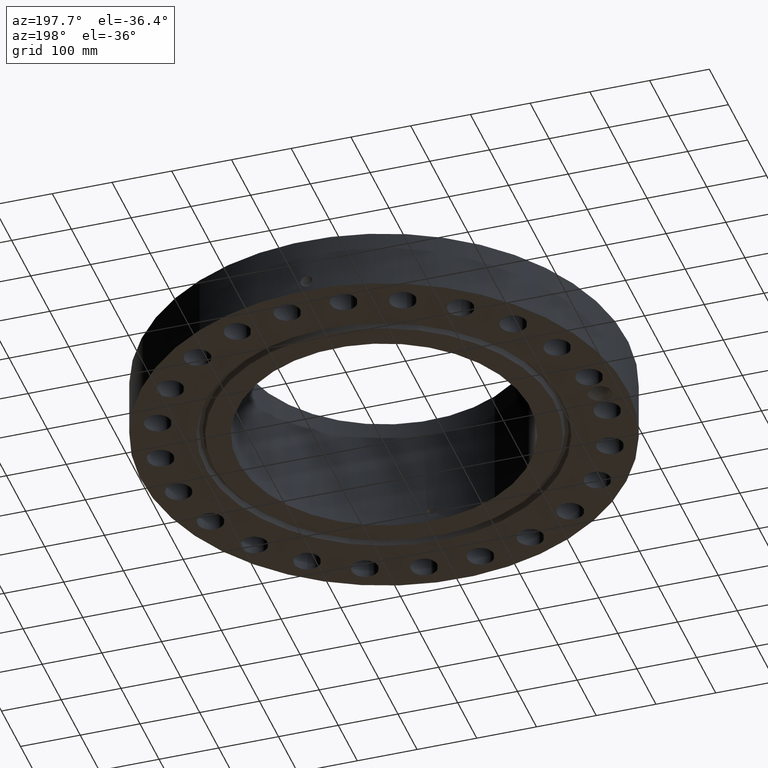
[diagram: clean part render]
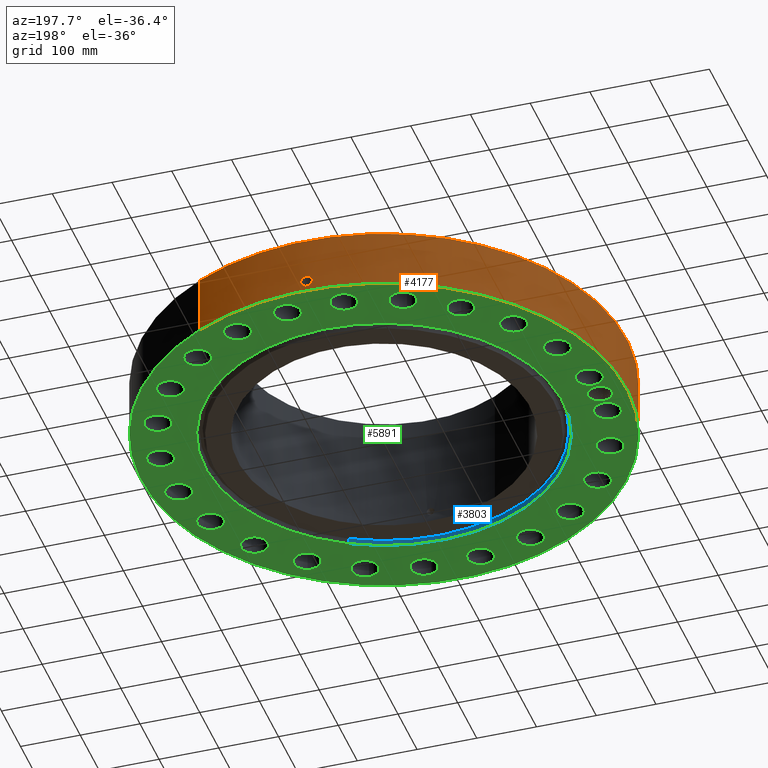
[diagram: same view with three faces highlighted in distinct colors, each labeled with its STEP entity id]
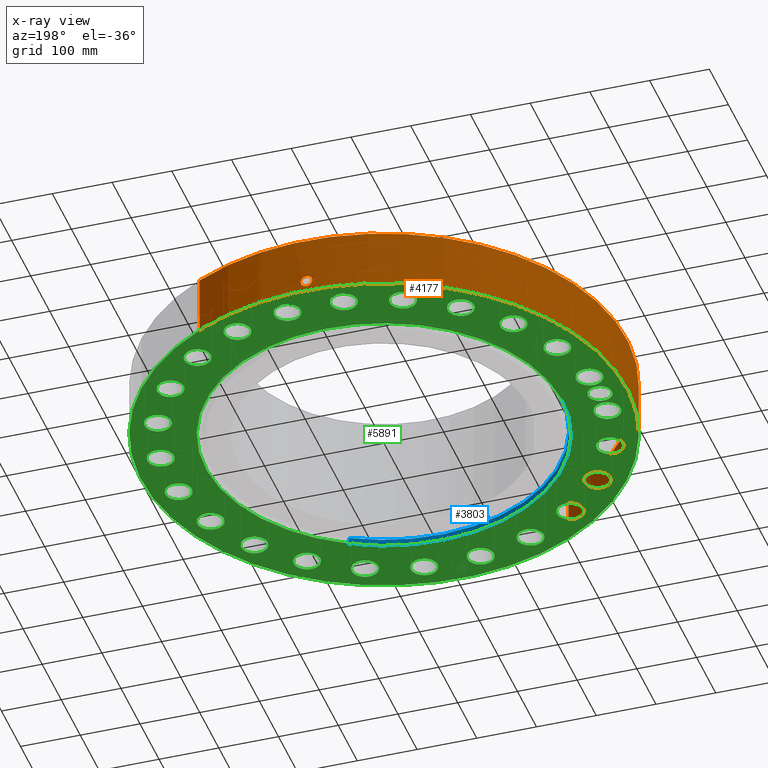
[diagram: x-ray of the same camera — body ghosted, the three highlighted faces saturated]
A machine part, auxiliary view with three faces highlighted in distinct colors.
The next image is the same camera in x-ray (body ghosted, the three faces saturated) — at least one of them is partly hidden behind the body in this view.
Their STEP definitions:

[orange] entity #4177 — the highlighted cylindrical surface (partial cylindrical patch) has radius 406.4 mm, axis along (0, 0, -1).
#2927=AXIS2_PLACEMENT_3D('Circle Axis2P3D',#2925,#2926,$) ;
#4063=AXIS2_PLACEMENT_3D('Cylinder Axis2P3D',#4060,#4061,#4062) ;
#4067=AXIS2_PLACEMENT_3D('Circle Axis2P3D',#4065,#4066,$) ;
#2920=CARTESIAN_POINT('Vertex',(7.6708086177,14.0413209903,3.87500000002)) ;
#2922=CARTESIAN_POINT('Vertex',(-7.6708086177,-14.0413209903,3.87500000002)) ;
#2925=CARTESIAN_POINT('Axis2P3D Location',(0.,0.,3.87500000002)) ;
#4060=CARTESIAN_POINT('Axis2P3D Location',(0.,0.,3.93750000002)) ;
#4065=CARTESIAN_POINT('Axis2P3D Location',(0.,0.,1.67844740731E-015)) ;
#4069=CARTESIAN_POINT('Vertex',(-7.6708086177,-14.0413209903,2.23792987641E-015)) ;
#4071=CARTESIAN_POINT('Vertex',(7.6708086177,14.0413209903,2.23792987641E-015)) ;
#4074=CARTESIAN_POINT('Line Origine',(-7.6708086177,-14.0413209903,1.93750000001)) ;
#4079=CARTESIAN_POINT('Line Origine',(7.6708086177,14.0413209903,1.93750000001)) ;
#4091=CARTESIAN_POINT('Control Point',(-0.000716008392116,15.999999984,1.10411846139)) ;
#4092=CARTESIAN_POINT('Control Point',(-0.0189154325791,15.9999991696,1.1040817082)) ;
#4093=CARTESIAN_POINT('Control Point',(-0.0371116867363,15.9999670598,1.10263811945)) ;
#4094=CARTESIAN_POINT('Control Point',(-0.0550890318255,15.9999051622,1.09980498088)) ;
#4095=CARTESIAN_POINT('Vertex',(-0.000715672256008,15.9999999841,1.10411851063)) ;
#4097=CARTESIAN_POINT('Vertex',(-0.0550803065232,15.999905444,1.09980637388)) ;
#4101=CARTESIAN_POINT('Control Point',(-0.0550802118813,15.9999051926,1.09980582858)) ;
#4102=CARTESIAN_POINT('Control Point',(-0.0955969838486,15.9997657123,1.09541327921)) ;
#4103=CARTESIAN_POINT('Control Point',(-0.135483074503,15.9994685863,1.08365436159)) ;
#4104=CARTESIAN_POINT('Control Point',(-0.172232896312,15.9990729679,1.0653007981)) ;
#4105=CARTESIAN_POINT('Vertex',(-0.172232896312,15.9990729679,1.0653007981)) ;
#4109=CARTESIAN_POINT('Control Point',(-0.0310649567399,15.9999698428,0.341193018259)) ;
#4110=CARTESIAN_POINT('Control Point',(-0.0962765262843,15.9998432304,0.349443757772)) ;
#4111=CARTESIAN_POINT('Control Point',(-0.159435222472,15.9993883715,0.371295261138)) ;
#4112=CARTESIAN_POINT('Control Point',(-0.21660465553,15.9986524433,0.406092532817)) ;
#4113=CARTESIAN_POINT('Control Point',(-0.292161661732,15.9973970214,0.477062028021)) ;
#4114=CARTESIAN_POINT('Control Point',(-0.340748175392,15.9963833302,0.565879201962)) ;
#4115=CARTESIAN_POINT('Control Point',(-0.354565893199,15.9960757286,0.60010180167)) ;
#4116=CARTESIAN_POINT('Control Point',(-0.37513194166,15.9956053363,0.675080916852)) ;
#4117=CARTESIAN_POINT('Control Point',(-0.376942949447,15.9955577989,0.752370184705)) ;
#4118=CARTESIAN_POINT('Control Point',(-0.372580085534,15.9956631169,0.792943341149)) ;
#4119=CARTESIAN_POINT('Control Point',(-0.350060892462,15.9961923171,0.88565834929)) ;
#4120=CARTESIAN_POINT('Control Point',(-0.300399921771,15.9972222194,0.967192321482)) ;
#4121=CARTESIAN_POINT('Control Point',(-0.263624814407,15.9979099405,1.00825222803)) ;
#4122=CARTESIAN_POINT('Control Point',(-0.220118864164,15.9985574668,1.04138562452)) ;
#4123=CARTESIAN_POINT('Control Point',(-0.172232896312,15.9990729679,1.0653007981)) ;
#4124=CARTESIAN_POINT('Vertex',(-0.0310649567399,15.9999698428,0.341193018259)) ;
#4128=CARTESIAN_POINT('Control Point',(-0.0310649567399,15.9999698428,0.341193018259)) ;
#4129=CARTESIAN_POINT('Control Point',(-0.020705174629,15.999989957,0.34087511048)) ;
#4130=CARTESIAN_POINT('Control Point',(-0.0103376437744,16.0000000018,0.340935838154)) ;
#4131=CARTESIAN_POINT('Control Point',(2.72878357803E-006,16.0000000001,0.341374667805)) ;
#4132=CARTESIAN_POINT('Vertex',(2.72878353824E-006,16.0000000001,0.341374667805)) ;
#4136=CARTESIAN_POINT('Control Point',(0.19258388645,15.9988409408,0.397488708576)) ;
#4137=CARTESIAN_POINT('Control Point',(0.148989688924,15.9993657001,0.372084856025)) ;
#4138=CARTESIAN_POINT('Control Point',(0.101113495156,15.9997843131,0.353795317004)) ;
#4139=CARTESIAN_POINT('Control Point',(0.05080449046,15.9999999914,0.343530615092)) ;
#4140=CARTESIAN_POINT('Control Point',(2.72878349275E-006,16.0000000001,0.341374667805)) ;
#4141=CARTESIAN_POINT('Vertex',(0.19258388645,15.9988409408,0.397488708576)) ;
#4145=CARTESIAN_POINT('Control Point',(0.19258388645,15.9988409408,0.397488708576)) ;
#4146=CARTESIAN_POINT('Control Point',(0.249383493126,15.9981572232,0.430587807935)) ;
#4147=CARTESIAN_POINT('Control Point',(0.299389171265,15.9973031853,0.475008490786)) ;
#4148=CARTESIAN_POINT('Control Point',(0.3394524256,15.9964366393,0.529171991541)) ;
#4149=CARTESIAN_POINT('Control Point',(0.383556872993,15.9954112295,0.627406953463)) ;
#4150=CARTESIAN_POINT('Control Point',(0.392034107967,15.9951951609,0.732688684405)) ;
#4151=CARTESIAN_POINT('Control Point',(0.389882999819,15.9952493329,0.772870036436)) ;
#4152=CARTESIAN_POINT('Control Point',(0.375666585746,15.9956011091,0.847792699241)) ;
#4153=CARTESIAN_POINT('Control Point',(0.343489946975,15.9963246888,0.916234875014)) ;
#4154=CARTESIAN_POINT('Control Point',(0.324394424324,15.9967324358,0.946657275789)) ;
#4155=CARTESIAN_POINT('Control Point',(0.262721035511,15.9979362201,1.02288492959)) ;
#4156=CARTESIAN_POINT('Control Point',(0.179727431408,15.9991319704,1.07573360299)) ;
#4157=CARTESIAN_POINT('Control Point',(0.121118275682,15.99971795,1.0977016688)) ;
#4158=CARTESIAN_POINT('Control Point',(0.0600802735763,16.0000000972,1.10709991283)) ;
#4159=CARTESIAN_POINT('Control Point',(-2.58579355047E-005,16.,1.1041529843)) ;
#4160=CARTESIAN_POINT('Vertex',(-2.58579355483E-005,16.,1.1041529843)) ;
#4164=CARTESIAN_POINT('Control Point',(-0.000715672246441,15.9999999841,1.10411851061)) ;
#4165=CARTESIAN_POINT('Control Point',(-0.000370789664234,15.9999999995,1.10413607272)) ;
#4166=CARTESIAN_POINT('Control Point',(-2.585794055E-005,16.,1.1041529843)) ;
#2926=DIRECTION('Axis2P3D Direction',(0.,0.,-0.0393700787402)) ;
#4061=DIRECTION('Axis2P3D Direction',(0.,0.,-0.0393700787402)) ;
#4062=DIRECTION('Axis2P3D XDirection',(0.0188750212049,0.0345504945626,0.)) ;
#4066=DIRECTION('Axis2P3D Direction',(0.,0.,-0.0393700787402)) ;
#4075=DIRECTION('Vector Direction',(0.,0.,-0.0393700787402)) ;
#4080=DIRECTION('Vector Direction',(0.,0.,-0.0393700787402)) ;
#4076=VECTOR('Line Direction',#4075,0.0393700787402) ;
#4081=VECTOR('Line Direction',#4080,0.0393700787402) ;
#4085=ORIENTED_EDGE('',*,*,#4073,.F.) ;
#4086=ORIENTED_EDGE('',*,*,#4078,.T.) ;
#4087=ORIENTED_EDGE('',*,*,#2929,.T.) ;
#4088=ORIENTED_EDGE('',*,*,#4083,.F.) ;
#4169=ORIENTED_EDGE('',*,*,#4099,.T.) ;
#4170=ORIENTED_EDGE('',*,*,#4107,.T.) ;
#4171=ORIENTED_EDGE('',*,*,#4126,.F.) ;
#4172=ORIENTED_EDGE('',*,*,#4134,.T.) ;
#4173=ORIENTED_EDGE('',*,*,#4143,.F.) ;
#4174=ORIENTED_EDGE('',*,*,#4162,.T.) ;
#4175=ORIENTED_EDGE('',*,*,#4167,.F.) ;
#4176=FACE_BOUND('',#4168,.T.) ;
#4177=ADVANCED_FACE('PartBody',(#4089,#4176),#4064,.T.) ;
#4090=B_SPLINE_CURVE_WITH_KNOTS('',3,(#4091,#4092,#4093,#4094),.UNSPECIFIED.,.F.,.U.,(4,4),(34.6166522849,36.6357055127),.UNSPECIFIED.) ;
#4100=B_SPLINE_CURVE_WITH_KNOTS('',3,(#4101,#4102,#4103,#4104),.UNSPECIFIED.,.F.,.U.,(4,4),(0.,4.57930785995),.UNSPECIFIED.) ;
#4108=B_SPLINE_CURVE_WITH_KNOTS('',5,(#4109,#4110,#4111,#4112,#4113,#4114,#4115,#4116,#4117,#4118,#4119,#4120,#4121,#4122,#4123),.UNSPECIFIED.,.F.,.U.,(6,3,3,3,6),(0.,11.4233522668,17.9912598645,25.3436101799,35.2885381895),.UNSPECIFIED.) ;
#4127=B_SPLINE_CURVE_WITH_KNOTS('',3,(#4128,#4129,#4130,#4131),.UNSPECIFIED.,.F.,.U.,(4,4),(0.,1.08068987329),.UNSPECIFIED.) ;
#4135=B_SPLINE_CURVE_WITH_KNOTS('',4,(#4136,#4137,#4138,#4139,#4140),.UNSPECIFIED.,.F.,.U.,(5,5),(0.,7.07917101212),.UNSPECIFIED.) ;
#4144=B_SPLINE_CURVE_WITH_KNOTS('',5,(#4145,#4146,#4147,#4148,#4149,#4150,#4151,#4152,#4153,#4154,#4155,#4156,#4157,#4158,#4159),.UNSPECIFIED.,.F.,.U.,(6,3,3,3,6),(0.,11.5294620754,18.6151346563,25.0414217412,36.276505331),.UNSPECIFIED.) ;
#4163=B_SPLINE_CURVE_WITH_KNOTS('',2,(#4164,#4165,#4166),.UNSPECIFIED.,.F.,.U.,(3,3),(1.02033615425,1.04612611494),.UNSPECIFIED.) ;
#2928=CIRCLE('generated circle',#2927,16.0000000001) ;
#4068=CIRCLE('generated circle',#4067,16.0000000001) ;
#4064=CYLINDRICAL_SURFACE('generated cylinder',#4063,16.0000000001) ;
#2929=EDGE_CURVE('',#2923,#2921,#2928,.T.) ;
#4073=EDGE_CURVE('',#4070,#4072,#4068,.T.) ;
#4078=EDGE_CURVE('',#4070,#2923,#4077,.F.) ;
#4083=EDGE_CURVE('',#4072,#2921,#4082,.F.) ;
#4099=EDGE_CURVE('',#4096,#4098,#4090,.T.) ;
#4107=EDGE_CURVE('',#4098,#4106,#4100,.T.) ;
#4126=EDGE_CURVE('',#4125,#4106,#4108,.T.) ;
#4134=EDGE_CURVE('',#4125,#4133,#4127,.T.) ;
#4143=EDGE_CURVE('',#4142,#4133,#4135,.T.) ;
#4162=EDGE_CURVE('',#4142,#4161,#4144,.T.) ;
#4167=EDGE_CURVE('',#4096,#4161,#4163,.T.) ;
#4084=EDGE_LOOP('',(#4085,#4086,#4087,#4088)) ;
#4168=EDGE_LOOP('',(#4169,#4170,#4171,#4172,#4173,#4174,#4175)) ;
#4089=FACE_OUTER_BOUND('',#4084,.T.) ;
#4077=LINE('Line',#4074,#4076) ;
#4082=LINE('Line',#4079,#4081) ;
#2921=VERTEX_POINT('',#2920) ;
#2923=VERTEX_POINT('',#2922) ;
#4070=VERTEX_POINT('',#4069) ;
#4072=VERTEX_POINT('',#4071) ;
#4096=VERTEX_POINT('',#4095) ;
#4098=VERTEX_POINT('',#4097) ;
#4106=VERTEX_POINT('',#4105) ;
#4125=VERTEX_POINT('',#4124) ;
#4133=VERTEX_POINT('',#4132) ;
#4142=VERTEX_POINT('',#4141) ;
#4161=VERTEX_POINT('',#4160) ;

[blue] entity #3803 — the highlighted conical surface has half-angle 23 deg.
#2635=AXIS2_PLACEMENT_3D('Circle Axis2P3D',#2633,#2634,$) ;
#3764=AXIS2_PLACEMENT_3D('Cone Axis2P3D',#3761,#3762,#3763) ;
#3794=AXIS2_PLACEMENT_3D('Circle Axis2P3D',#3792,#3793,$) ;
#2611=CARTESIAN_POINT('Vertex',(5.57180647081,-10.1991233326,0.338443867711)) ;
#2613=CARTESIAN_POINT('Vertex',(-5.57180647081,10.1991233326,0.338443867711)) ;
#2633=CARTESIAN_POINT('Axis2P3D Location',(0.,0.,0.338443867711)) ;
#3761=CARTESIAN_POINT('Axis2P3D Location',(0.,0.,0.338443867711)) ;
#3770=CARTESIAN_POINT('Vertex',(-5.64068117447,10.325197632,0.)) ;
#3772=CARTESIAN_POINT('Vertex',(5.64068117447,-10.325197632,-1.95818864186E-015)) ;
#3775=CARTESIAN_POINT('Line Origine',(5.60624382264,-10.2621604823,0.169221933855)) ;
#3780=CARTESIAN_POINT('Line Origine',(-5.60624382264,10.2621604823,0.169221933855)) ;
#3792=CARTESIAN_POINT('Axis2P3D Location',(0.,0.,0.)) ;
#2634=DIRECTION('Axis2P3D Direction',(0.,0.,0.0393700787402)) ;
#3762=DIRECTION('Axis2P3D Direction',(-0.,-0.,-0.0393700787402)) ;
#3763=DIRECTION('Axis2P3D XDirection',(0.0188750212049,-0.0345504945626,0.)) ;
#3776=DIRECTION('Vector Direction',(0.00737505833565,-0.0134999537303,-0.0362403485611)) ;
#3781=DIRECTION('Vector Direction',(-0.00737505833565,0.0134999537303,-0.0362403485611)) ;
#3793=DIRECTION('Axis2P3D Direction',(0.,0.,-0.0393700787402)) ;
#3777=VECTOR('Line Direction',#3776,0.0393700787402) ;
#3782=VECTOR('Line Direction',#3781,0.0393700787402) ;
#3798=ORIENTED_EDGE('',*,*,#3796,.T.) ;
#3799=ORIENTED_EDGE('',*,*,#3784,.T.) ;
#3800=ORIENTED_EDGE('',*,*,#2637,.T.) ;
#3801=ORIENTED_EDGE('',*,*,#3779,.F.) ;
#3803=ADVANCED_FACE('PartBody',(#3802),#3765,.F.) ;
#2636=CIRCLE('generated circle',#2635,11.6218391015) ;
#3795=CIRCLE('generated circle',#3794,11.7655) ;
#3765=CONICAL_SURFACE('Cone',#3764,11.6218391015,0.401425727959) ;
#2637=EDGE_CURVE('',#2614,#2612,#2636,.T.) ;
#3779=EDGE_CURVE('',#3773,#2612,#3778,.F.) ;
#3784=EDGE_CURVE('',#3771,#2614,#3783,.F.) ;
#3796=EDGE_CURVE('',#3773,#3771,#3795,.T.) ;
#3797=EDGE_LOOP('',(#3798,#3799,#3800,#3801)) ;
#3802=FACE_OUTER_BOUND('',#3797,.T.) ;
#3778=LINE('Line',#3775,#3777) ;
#3783=LINE('Line',#3780,#3782) ;
#2612=VERTEX_POINT('',#2611) ;
#2614=VERTEX_POINT('',#2613) ;
#3771=VERTEX_POINT('',#3770) ;
#3773=VERTEX_POINT('',#3772) ;

[green] entity #5891 — the highlighted planar face has unit normal (0, 0, -1).
#598=AXIS2_PLACEMENT_3D('Plane Axis2P3D',#595,#596,#597) ;
#3768=AXIS2_PLACEMENT_3D('Circle Axis2P3D',#3766,#3767,$) ;
#3794=AXIS2_PLACEMENT_3D('Circle Axis2P3D',#3792,#3793,$) ;
#4067=AXIS2_PLACEMENT_3D('Circle Axis2P3D',#4065,#4066,$) ;
#4180=AXIS2_PLACEMENT_3D('Circle Axis2P3D',#4178,#4179,$) ;
#4416=AXIS2_PLACEMENT_3D('Circle Axis2P3D',#4414,#4415,$) ;
#4435=AXIS2_PLACEMENT_3D('Circle Axis2P3D',#4433,#4434,$) ;
#4459=AXIS2_PLACEMENT_3D('Circle Axis2P3D',#4457,#4458,$) ;
#4478=AXIS2_PLACEMENT_3D('Circle Axis2P3D',#4476,#4477,$) ;
#4502=AXIS2_PLACEMENT_3D('Circle Axis2P3D',#4500,#4501,$) ;
#4521=AXIS2_PLACEMENT_3D('Circle Axis2P3D',#4519,#4520,$) ;
#4545=AXIS2_PLACEMENT_3D('Circle Axis2P3D',#4543,#4544,$) ;
#4564=AXIS2_PLACEMENT_3D('Circle Axis2P3D',#4562,#4563,$) ;
#4588=AXIS2_PLACEMENT_3D('Circle Axis2P3D',#4586,#4587,$) ;
#4607=AXIS2_PLACEMENT_3D('Circle Axis2P3D',#4605,#4606,$) ;
#4631=AXIS2_PLACEMENT_3D('Circle Axis2P3D',#4629,#4630,$) ;
#4650=AXIS2_PLACEMENT_3D('Circle Axis2P3D',#4648,#4649,$) ;
#4674=AXIS2_PLACEMENT_3D('Circle Axis2P3D',#4672,#4673,$) ;
#4693=AXIS2_PLACEMENT_3D('Circle Axis2P3D',#4691,#4692,$) ;
#4717=AXIS2_PLACEMENT_3D('Circle Axis2P3D',#4715,#4716,$) ;
#4736=AXIS2_PLACEMENT_3D('Circle Axis2P3D',#4734,#4735,$) ;
#4760=AXIS2_PLACEMENT_3D('Circle Axis2P3D',#4758,#4759,$) ;
#4779=AXIS2_PLACEMENT_3D('Circle Axis2P3D',#4777,#4778,$) ;
#4803=AXIS2_PLACEMENT_3D('Circle Axis2P3D',#4801,#4802,$) ;
#4822=AXIS2_PLACEMENT_3D('Circle Axis2P3D',#4820,#4821,$) ;
#4846=AXIS2_PLACEMENT_3D('Circle Axis2P3D',#4844,#4845,$) ;
#4865=AXIS2_PLACEMENT_3D('Circle Axis2P3D',#4863,#4864,$) ;
#4889=AXIS2_PLACEMENT_3D('Circle Axis2P3D',#4887,#4888,$) ;
#4908=AXIS2_PLACEMENT_3D('Circle Axis2P3D',#4906,#4907,$) ;
#4932=AXIS2_PLACEMENT_3D('Circle Axis2P3D',#4930,#4931,$) ;
#4951=AXIS2_PLACEMENT_3D('Circle Axis2P3D',#4949,#4950,$) ;
#4975=AXIS2_PLACEMENT_3D('Circle Axis2P3D',#4973,#4974,$) ;
#4994=AXIS2_PLACEMENT_3D('Circle Axis2P3D',#4992,#4993,$) ;
#5018=AXIS2_PLACEMENT_3D('Circle Axis2P3D',#5016,#5017,$) ;
#5037=AXIS2_PLACEMENT_3D('Circle Axis2P3D',#5035,#5036,$) ;
#5061=AXIS2_PLACEMENT_3D('Circle Axis2P3D',#5059,#5060,$) ;
#5080=AXIS2_PLACEMENT_3D('Circle Axis2P3D',#5078,#5079,$) ;
#5104=AXIS2_PLACEMENT_3D('Circle Axis2P3D',#5102,#5103,$) ;
#5123=AXIS2_PLACEMENT_3D('Circle Axis2P3D',#5121,#5122,$) ;
#5147=AXIS2_PLACEMENT_3D('Circle Axis2P3D',#5145,#5146,$) ;
#5166=AXIS2_PLACEMENT_3D('Circle Axis2P3D',#5164,#5165,$) ;
#5190=AXIS2_PLACEMENT_3D('Circle Axis2P3D',#5188,#5189,$) ;
#5209=AXIS2_PLACEMENT_3D('Circle Axis2P3D',#5207,#5208,$) ;
#5233=AXIS2_PLACEMENT_3D('Circle Axis2P3D',#5231,#5232,$) ;
#5252=AXIS2_PLACEMENT_3D('Circle Axis2P3D',#5250,#5251,$) ;
#5276=AXIS2_PLACEMENT_3D('Circle Axis2P3D',#5274,#5275,$) ;
#5295=AXIS2_PLACEMENT_3D('Circle Axis2P3D',#5293,#5294,$) ;
#5319=AXIS2_PLACEMENT_3D('Circle Axis2P3D',#5317,#5318,$) ;
#5338=AXIS2_PLACEMENT_3D('Circle Axis2P3D',#5336,#5337,$) ;
#5362=AXIS2_PLACEMENT_3D('Circle Axis2P3D',#5360,#5361,$) ;
#5381=AXIS2_PLACEMENT_3D('Circle Axis2P3D',#5379,#5380,$) ;
#5405=AXIS2_PLACEMENT_3D('Circle Axis2P3D',#5403,#5404,$) ;
#5424=AXIS2_PLACEMENT_3D('Circle Axis2P3D',#5422,#5423,$) ;
#5735=AXIS2_PLACEMENT_3D('Circle Axis2P3D',#5733,#5734,$) ;
#5744=AXIS2_PLACEMENT_3D('Circle Axis2P3D',#5742,#5743,$) ;
#595=CARTESIAN_POINT('Axis2P3D Location',(0.,9.62500000004,0.)) ;
#3766=CARTESIAN_POINT('Axis2P3D Location',(0.,0.,0.)) ;
#3770=CARTESIAN_POINT('Vertex',(-5.64068117447,10.325197632,0.)) ;
#3772=CARTESIAN_POINT('Vertex',(5.64068117447,-10.325197632,-1.95818864186E-015)) ;
#3792=CARTESIAN_POINT('Axis2P3D Location',(0.,0.,0.)) ;
#4065=CARTESIAN_POINT('Axis2P3D Location',(0.,0.,1.67844740731E-015)) ;
#4069=CARTESIAN_POINT('Vertex',(-7.6708086177,-14.0413209903,2.23792987641E-015)) ;
#4071=CARTESIAN_POINT('Vertex',(7.6708086177,14.0413209903,2.23792987641E-015)) ;
#4178=CARTESIAN_POINT('Axis2P3D Location',(0.,0.,1.67844740731E-015)) ;
#4411=CARTESIAN_POINT('Vertex',(14.8959740163,-2.27949558542,0.)) ;
#4414=CARTESIAN_POINT('Axis2P3D Location',(14.1280892746,-1.85999823914,0.)) ;
#4418=CARTESIAN_POINT('Vertex',(13.360204533,-1.44050089286,0.)) ;
#4433=CARTESIAN_POINT('Axis2P3D Location',(14.1280892746,-1.85999823914,0.)) ;
#4454=CARTESIAN_POINT('Vertex',(12.5321375373,-4.84929239481,0.)) ;
#4457=CARTESIAN_POINT('Axis2P3D Location',(13.1652833383,-5.45323891122,0.)) ;
#4461=CARTESIAN_POINT('Vertex',(13.7984291393,-6.05718542764,0.)) ;
#4476=CARTESIAN_POINT('Axis2P3D Location',(13.1652833383,-5.45323891122,0.)) ;
#4497=CARTESIAN_POINT('Vertex',(10.8500260789,-7.92761263388,0.)) ;
#4500=CARTESIAN_POINT('Axis2P3D Location',(11.3052850992,-8.67485036341,0.)) ;
#4504=CARTESIAN_POINT('Vertex',(11.7605441195,-9.42208809294,0.)) ;
#4519=CARTESIAN_POINT('Axis2P3D Location',(11.3052850992,-8.67485036341,0.)) ;
#4540=CARTESIAN_POINT('Vertex',(8.42850327366,-10.465679173,0.)) ;
#4543=CARTESIAN_POINT('Axis2P3D Location',(8.67485036341,-11.3052850992,0.)) ;
#4547=CARTESIAN_POINT('Vertex',(8.92119745316,-12.1448910254,0.)) ;
#4562=CARTESIAN_POINT('Axis2P3D Location',(8.67485036341,-11.3052850992,0.)) ;
#4583=CARTESIAN_POINT('Vertex',(5.43259189909,-12.2905269717,0.)) ;
#4586=CARTESIAN_POINT('Axis2P3D Location',(5.45323891122,-13.1652833383,0.)) ;
#4590=CARTESIAN_POINT('Vertex',(5.47388592335,-14.0400397049,0.)) ;
#4605=CARTESIAN_POINT('Axis2P3D Location',(5.45323891122,-13.1652833383,0.)) ;
#4626=CARTESIAN_POINT('Vertex',(2.06645836439,-13.2777956685,0.)) ;
#4629=CARTESIAN_POINT('Axis2P3D Location',(1.85999823914,-14.1280892746,0.)) ;
#4633=CARTESIAN_POINT('Vertex',(1.6535381139,-14.9783828808,0.)) ;
#4648=CARTESIAN_POINT('Axis2P3D Location',(1.85999823914,-14.1280892746,0.)) ;
#4669=CARTESIAN_POINT('Vertex',(-1.44050089286,-13.360204533,0.)) ;
#4672=CARTESIAN_POINT('Axis2P3D Location',(-1.85999823914,-14.1280892746,0.)) ;
#4676=CARTESIAN_POINT('Vertex',(-2.27949558542,-14.8959740163,0.)) ;
#4691=CARTESIAN_POINT('Axis2P3D Location',(-1.85999823914,-14.1280892746,0.)) ;
#4712=CARTESIAN_POINT('Vertex',(-4.84929239481,-12.5321375373,0.)) ;
#4715=CARTESIAN_POINT('Axis2P3D Location',(-5.45323891122,-13.1652833383,-2.23792987641E-015)) ;
#4719=CARTESIAN_POINT('Vertex',(-6.05718542764,-13.7984291393,-2.23792987641E-015)) ;
#4734=CARTESIAN_POINT('Axis2P3D Location',(-5.45323891122,-13.1652833383,-2.23792987641E-015)) ;
#4755=CARTESIAN_POINT('Vertex',(-7.92761263388,-10.8500260789,0.)) ;
#4758=CARTESIAN_POINT('Axis2P3D Location',(-8.67485036341,-11.3052850992,-3.35689481461E-015)) ;
#4762=CARTESIAN_POINT('Vertex',(-9.42208809294,-11.7605441195,-3.35689481461E-015)) ;
#4777=CARTESIAN_POINT('Axis2P3D Location',(-8.67485036341,-11.3052850992,-3.35689481461E-015)) ;
#4798=CARTESIAN_POINT('Vertex',(-10.465679173,-8.42850327366,0.)) ;
#4801=CARTESIAN_POINT('Axis2P3D Location',(-11.3052850992,-8.67485036341,0.)) ;
#4805=CARTESIAN_POINT('Vertex',(-12.1448910254,-8.92119745316,0.)) ;
#4820=CARTESIAN_POINT('Axis2P3D Location',(-11.3052850992,-8.67485036341,0.)) ;
#4841=CARTESIAN_POINT('Vertex',(-12.2905269717,-5.43259189909,0.)) ;
#4844=CARTESIAN_POINT('Axis2P3D Location',(-13.1652833383,-5.45323891122,0.)) ;
#4848=CARTESIAN_POINT('Vertex',(-14.0400397049,-5.47388592335,0.)) ;
#4863=CARTESIAN_POINT('Axis2P3D Location',(-13.1652833383,-5.45323891122,0.)) ;
#4884=CARTESIAN_POINT('Vertex',(-13.2777956685,-2.06645836439,0.)) ;
#4887=CARTESIAN_POINT('Axis2P3D Location',(-14.1280892746,-1.85999823914,0.)) ;
#4891=CARTESIAN_POINT('Vertex',(-14.9783828808,-1.6535381139,0.)) ;
#4906=CARTESIAN_POINT('Axis2P3D Location',(-14.1280892746,-1.85999823914,0.)) ;
#4927=CARTESIAN_POINT('Vertex',(-13.360204533,1.44050089286,0.)) ;
#4930=CARTESIAN_POINT('Axis2P3D Location',(-14.1280892746,1.85999823914,0.)) ;
#4934=CARTESIAN_POINT('Vertex',(-14.8959740163,2.27949558542,0.)) ;
#4949=CARTESIAN_POINT('Axis2P3D Location',(-14.1280892746,1.85999823914,0.)) ;
#4970=CARTESIAN_POINT('Vertex',(-12.5321375373,4.84929239481,0.)) ;
#4973=CARTESIAN_POINT('Axis2P3D Location',(-13.1652833383,5.45323891122,0.)) ;
#4977=CARTESIAN_POINT('Vertex',(-13.7984291393,6.05718542764,0.)) ;
#4992=CARTESIAN_POINT('Axis2P3D Location',(-13.1652833383,5.45323891122,0.)) ;
#5013=CARTESIAN_POINT('Vertex',(-10.8500260789,7.92761263388,0.)) ;
#5016=CARTESIAN_POINT('Axis2P3D Location',(-11.3052850992,8.67485036341,0.)) ;
#5020=CARTESIAN_POINT('Vertex',(-11.7605441195,9.42208809294,0.)) ;
#5035=CARTESIAN_POINT('Axis2P3D Location',(-11.3052850992,8.67485036341,0.)) ;
#5056=CARTESIAN_POINT('Vertex',(-8.42850327366,10.465679173,0.)) ;
#5059=CARTESIAN_POINT('Axis2P3D Location',(-8.67485036341,11.3052850992,0.)) ;
#5063=CARTESIAN_POINT('Vertex',(-8.92119745316,12.1448910254,0.)) ;
#5078=CARTESIAN_POINT('Axis2P3D Location',(-8.67485036341,11.3052850992,0.)) ;
#5099=CARTESIAN_POINT('Vertex',(-5.43259189909,12.2905269717,0.)) ;
#5102=CARTESIAN_POINT('Axis2P3D Location',(-5.45323891122,13.1652833383,0.)) ;
#5106=CARTESIAN_POINT('Vertex',(-5.47388592335,14.0400397049,0.)) ;
#5121=CARTESIAN_POINT('Axis2P3D Location',(-5.45323891122,13.1652833383,0.)) ;
#5142=CARTESIAN_POINT('Vertex',(-2.06645836439,13.2777956685,0.)) ;
#5145=CARTESIAN_POINT('Axis2P3D Location',(-1.85999823914,14.1280892746,0.)) ;
#5149=CARTESIAN_POINT('Vertex',(-1.6535381139,14.9783828808,0.)) ;
#5164=CARTESIAN_POINT('Axis2P3D Location',(-1.85999823914,14.1280892746,0.)) ;
#5185=CARTESIAN_POINT('Vertex',(1.44050089286,13.360204533,0.)) ;
#5188=CARTESIAN_POINT('Axis2P3D Location',(1.85999823914,14.1280892746,0.)) ;
#5192=CARTESIAN_POINT('Vertex',(2.27949558542,14.8959740163,0.)) ;
#5207=CARTESIAN_POINT('Axis2P3D Location',(1.85999823914,14.1280892746,0.)) ;
#5228=CARTESIAN_POINT('Vertex',(4.84929239481,12.5321375373,0.)) ;
#5231=CARTESIAN_POINT('Axis2P3D Location',(5.45323891122,13.1652833383,0.)) ;
#5235=CARTESIAN_POINT('Vertex',(6.05718542764,13.7984291393,0.)) ;
#5250=CARTESIAN_POINT('Axis2P3D Location',(5.45323891122,13.1652833383,0.)) ;
#5271=CARTESIAN_POINT('Vertex',(7.92761263388,10.8500260789,0.)) ;
#5274=CARTESIAN_POINT('Axis2P3D Location',(8.67485036341,11.3052850992,0.)) ;
#5278=CARTESIAN_POINT('Vertex',(9.42208809294,11.7605441195,0.)) ;
#5293=CARTESIAN_POINT('Axis2P3D Location',(8.67485036341,11.3052850992,0.)) ;
#5314=CARTESIAN_POINT('Vertex',(10.465679173,8.42850327366,0.)) ;
#5317=CARTESIAN_POINT('Axis2P3D Location',(11.3052850992,8.67485036341,0.)) ;
#5321=CARTESIAN_POINT('Vertex',(12.1448910254,8.92119745316,0.)) ;
#5336=CARTESIAN_POINT('Axis2P3D Location',(11.3052850992,8.67485036341,0.)) ;
#5357=CARTESIAN_POINT('Vertex',(12.2905269717,5.43259189909,0.)) ;
#5360=CARTESIAN_POINT('Axis2P3D Location',(13.1652833383,5.45323891122,0.)) ;
#5364=CARTESIAN_POINT('Vertex',(14.0400397049,5.47388592335,0.)) ;
#5379=CARTESIAN_POINT('Axis2P3D Location',(13.1652833383,5.45323891122,0.)) ;
#5400=CARTESIAN_POINT('Vertex',(13.2777956685,2.06645836439,0.)) ;
#5403=CARTESIAN_POINT('Axis2P3D Location',(14.1280892746,1.85999823914,0.)) ;
#5407=CARTESIAN_POINT('Vertex',(14.9783828808,1.6535381139,0.)) ;
#5422=CARTESIAN_POINT('Axis2P3D Location',(14.1280892746,1.85999823914,0.)) ;
#5733=CARTESIAN_POINT('Axis2P3D Location',(-14.2500000001,-5.59482469102E-015,0.)) ;
#5737=CARTESIAN_POINT('Vertex',(-14.920692473,0.36640096788,0.)) ;
#5739=CARTESIAN_POINT('Vertex',(-14.1094306095,0.75121122791,0.)) ;
#5742=CARTESIAN_POINT('Axis2P3D Location',(-14.2500000001,-5.59482469102E-015,0.)) ;
#5746=CARTESIAN_POINT('Vertex',(-14.1097536316,-0.751271601117,0.)) ;
#5750=CARTESIAN_POINT('Control Point',(-13.4375000001,-7.83275456743E-015,0.)) ;
#5751=CARTESIAN_POINT('Control Point',(-13.4405034542,-0.0700819285857,0.)) ;
#5752=CARTESIAN_POINT('Control Point',(-13.4510704131,-0.139688741525,0.)) ;
#5753=CARTESIAN_POINT('Control Point',(-13.469126324,-0.207699956182,0.)) ;
#5754=CARTESIAN_POINT('Control Point',(-13.5196047882,-0.338419013301,0.)) ;
#5755=CARTESIAN_POINT('Control Point',(-13.5966628751,-0.45457305884,0.)) ;
#5756=CARTESIAN_POINT('Control Point',(-13.6413276843,-0.508069708967,0.)) ;
#5757=CARTESIAN_POINT('Control Point',(-13.7414180917,-0.604187066671,0.)) ;
#5758=CARTESIAN_POINT('Control Point',(-13.859436652,-0.675897153558,0.)) ;
#5759=CARTESIAN_POINT('Control Point',(-13.9220591025,-0.70500553106,0.)) ;
#5760=CARTESIAN_POINT('Control Point',(-13.9980973818,-0.730534705861,0.)) ;
#5761=CARTESIAN_POINT('Control Point',(-14.0761243261,-0.745926395749,0.)) ;
#5762=CARTESIAN_POINT('Control Point',(-14.0873054263,-0.747917097956,0.)) ;
#5763=CARTESIAN_POINT('Control Point',(-14.098516914,-0.749699054026,0.)) ;
#5764=CARTESIAN_POINT('Control Point',(-14.1097536316,-0.751271601117,0.)) ;
#5765=CARTESIAN_POINT('Vertex',(-13.4375000001,-6.71378962923E-015,0.)) ;
#5769=CARTESIAN_POINT('Control Point',(-13.4375000001,-6.71378962923E-015,0.)) ;
#5770=CARTESIAN_POINT('Control Point',(-13.4405027017,0.0700643704389,0.)) ;
#5771=CARTESIAN_POINT('Control Point',(-13.451065102,0.139653916554,0.)) ;
#5772=CARTESIAN_POINT('Control Point',(-13.4691221647,0.207669665983,0.)) ;
#5773=CARTESIAN_POINT('Control Point',(-13.5195963373,0.338375346104,0.)) ;
#5774=CARTESIAN_POINT('Control Point',(-13.5966936542,0.454596623609,0.)) ;
#5775=CARTESIAN_POINT('Control Point',(-13.6413728868,0.508119610523,0.)) ;
#5776=CARTESIAN_POINT('Control Point',(-13.7248060198,0.588234336413,0.)) ;
#5777=CARTESIAN_POINT('Control Point',(-13.8207317134,0.651398172347,0.)) ;
#5778=CARTESIAN_POINT('Control Point',(-13.860824708,0.673749756225,0.)) ;
#5779=CARTESIAN_POINT('Control Point',(-13.9334162356,0.707459416637,0.)) ;
#5780=CARTESIAN_POINT('Control Point',(-14.009437181,0.731460646307,0.)) ;
#5781=CARTESIAN_POINT('Control Point',(-14.0424616597,0.73990565866,0.)) ;
#5782=CARTESIAN_POINT('Control Point',(-14.0758393229,0.746494356371,0.)) ;
#5783=CARTESIAN_POINT('Control Point',(-14.1094306095,0.75121122791,0.)) ;
#596=DIRECTION('Axis2P3D Direction',(0.,0.,-0.0393700787402)) ;
#597=DIRECTION('Axis2P3D XDirection',(0.0393700787402,0.,0.)) ;
#3767=DIRECTION('Axis2P3D Direction',(0.,0.,-0.0393700787402)) ;
#3793=DIRECTION('Axis2P3D Direction',(0.,0.,-0.0393700787402)) ;
#4066=DIRECTION('Axis2P3D Direction',(0.,0.,-0.0393700787402)) ;
#4179=DIRECTION('Axis2P3D Direction',(0.,0.,-0.0393700787402)) ;
#4415=DIRECTION('Axis2P3D Direction',(0.,-0.,-0.0393700787402)) ;
#4434=DIRECTION('Axis2P3D Direction',(0.,-0.,-0.0393700787402)) ;
#4458=DIRECTION('Axis2P3D Direction',(0.,-0.,-0.0393700787402)) ;
#4477=DIRECTION('Axis2P3D Direction',(0.,-0.,-0.0393700787402)) ;
#4501=DIRECTION('Axis2P3D Direction',(0.,-0.,-0.0393700787402)) ;
#4520=DIRECTION('Axis2P3D Direction',(0.,-0.,-0.0393700787402)) ;
#4544=DIRECTION('Axis2P3D Direction',(0.,-0.,-0.0393700787402)) ;
#4563=DIRECTION('Axis2P3D Direction',(0.,-0.,-0.0393700787402)) ;
#4587=DIRECTION('Axis2P3D Direction',(0.,-0.,-0.0393700787402)) ;
#4606=DIRECTION('Axis2P3D Direction',(0.,-0.,-0.0393700787402)) ;
#4630=DIRECTION('Axis2P3D Direction',(0.,-0.,-0.0393700787402)) ;
#4649=DIRECTION('Axis2P3D Direction',(0.,-0.,-0.0393700787402)) ;
#4673=DIRECTION('Axis2P3D Direction',(0.,-0.,-0.0393700787402)) ;
#4692=DIRECTION('Axis2P3D Direction',(0.,-0.,-0.0393700787402)) ;
#4716=DIRECTION('Axis2P3D Direction',(-0.,0.,-0.0393700787402)) ;
#4735=DIRECTION('Axis2P3D Direction',(-0.,0.,-0.0393700787402)) ;
#4759=DIRECTION('Axis2P3D Direction',(-0.,0.,-0.0393700787402)) ;
#4778=DIRECTION('Axis2P3D Direction',(-0.,0.,-0.0393700787402)) ;
#4802=DIRECTION('Axis2P3D Direction',(-0.,0.,-0.0393700787402)) ;
#4821=DIRECTION('Axis2P3D Direction',(-0.,0.,-0.0393700787402)) ;
#4845=DIRECTION('Axis2P3D Direction',(-0.,0.,-0.0393700787402)) ;
#4864=DIRECTION('Axis2P3D Direction',(-0.,0.,-0.0393700787402)) ;
#4888=DIRECTION('Axis2P3D Direction',(-0.,0.,-0.0393700787402)) ;
#4907=DIRECTION('Axis2P3D Direction',(-0.,0.,-0.0393700787402)) ;
#4931=DIRECTION('Axis2P3D Direction',(-0.,0.,-0.0393700787402)) ;
#4950=DIRECTION('Axis2P3D Direction',(-0.,0.,-0.0393700787402)) ;
#4974=DIRECTION('Axis2P3D Direction',(0.,0.,-0.0393700787402)) ;
#4993=DIRECTION('Axis2P3D Direction',(0.,0.,-0.0393700787402)) ;
#5017=DIRECTION('Axis2P3D Direction',(0.,0.,-0.0393700787402)) ;
#5036=DIRECTION('Axis2P3D Direction',(0.,0.,-0.0393700787402)) ;
#5060=DIRECTION('Axis2P3D Direction',(0.,0.,-0.0393700787402)) ;
#5079=DIRECTION('Axis2P3D Direction',(0.,0.,-0.0393700787402)) ;
#5103=DIRECTION('Axis2P3D Direction',(0.,0.,-0.0393700787402)) ;
#5122=DIRECTION('Axis2P3D Direction',(0.,0.,-0.0393700787402)) ;
#5146=DIRECTION('Axis2P3D Direction',(0.,0.,-0.0393700787402)) ;
#5165=DIRECTION('Axis2P3D Direction',(0.,0.,-0.0393700787402)) ;
#5189=DIRECTION('Axis2P3D Direction',(0.,0.,-0.0393700787402)) ;
#5208=DIRECTION('Axis2P3D Direction',(0.,0.,-0.0393700787402)) ;
#5232=DIRECTION('Axis2P3D Direction',(0.,0.,-0.0393700787402)) ;
#5251=DIRECTION('Axis2P3D Direction',(0.,0.,-0.0393700787402)) ;
#5275=DIRECTION('Axis2P3D Direction',(0.,0.,-0.0393700787402)) ;
#5294=DIRECTION('Axis2P3D Direction',(0.,0.,-0.0393700787402)) ;
#5318=DIRECTION('Axis2P3D Direction',(0.,0.,-0.0393700787402)) ;
#5337=DIRECTION('Axis2P3D Direction',(0.,0.,-0.0393700787402)) ;
#5361=DIRECTION('Axis2P3D Direction',(0.,0.,-0.0393700787402)) ;
#5380=DIRECTION('Axis2P3D Direction',(0.,0.,-0.0393700787402)) ;
#5404=DIRECTION('Axis2P3D Direction',(0.,0.,-0.0393700787402)) ;
#5423=DIRECTION('Axis2P3D Direction',(0.,0.,-0.0393700787402)) ;
#5734=DIRECTION('Axis2P3D Direction',(0.,0.,-0.0393700787402)) ;
#5743=DIRECTION('Axis2P3D Direction',(0.,0.,-0.0393700787402)) ;
#5730=ORIENTED_EDGE('',*,*,#4073,.T.) ;
#5731=ORIENTED_EDGE('',*,*,#4182,.T.) ;
#5786=ORIENTED_EDGE('',*,*,#5741,.F.) ;
#5787=ORIENTED_EDGE('',*,*,#5748,.F.) ;
#5788=ORIENTED_EDGE('',*,*,#5767,.F.) ;
#5789=ORIENTED_EDGE('',*,*,#5784,.T.) ;
#5792=ORIENTED_EDGE('',*,*,#4420,.F.) ;
#5793=ORIENTED_EDGE('',*,*,#4437,.F.) ;
#5796=ORIENTED_EDGE('',*,*,#4463,.F.) ;
#5797=ORIENTED_EDGE('',*,*,#4480,.F.) ;
#5800=ORIENTED_EDGE('',*,*,#4506,.F.) ;
#5801=ORIENTED_EDGE('',*,*,#4523,.F.) ;
#5804=ORIENTED_EDGE('',*,*,#4549,.F.) ;
#5805=ORIENTED_EDGE('',*,*,#4566,.F.) ;
#5808=ORIENTED_EDGE('',*,*,#4592,.F.) ;
#5809=ORIENTED_EDGE('',*,*,#4609,.F.) ;
#5812=ORIENTED_EDGE('',*,*,#4635,.F.) ;
#5813=ORIENTED_EDGE('',*,*,#4652,.F.) ;
#5816=ORIENTED_EDGE('',*,*,#4678,.F.) ;
#5817=ORIENTED_EDGE('',*,*,#4695,.F.) ;
#5820=ORIENTED_EDGE('',*,*,#4721,.F.) ;
#5821=ORIENTED_EDGE('',*,*,#4738,.F.) ;
#5824=ORIENTED_EDGE('',*,*,#4764,.F.) ;
#5825=ORIENTED_EDGE('',*,*,#4781,.F.) ;
#5828=ORIENTED_EDGE('',*,*,#4807,.F.) ;
#5829=ORIENTED_EDGE('',*,*,#4824,.F.) ;
#5832=ORIENTED_EDGE('',*,*,#4850,.F.) ;
#5833=ORIENTED_EDGE('',*,*,#4867,.F.) ;
#5836=ORIENTED_EDGE('',*,*,#4893,.F.) ;
#5837=ORIENTED_EDGE('',*,*,#4910,.F.) ;
#5840=ORIENTED_EDGE('',*,*,#4936,.F.) ;
#5841=ORIENTED_EDGE('',*,*,#4953,.F.) ;
#5844=ORIENTED_EDGE('',*,*,#4979,.F.) ;
#5845=ORIENTED_EDGE('',*,*,#4996,.F.) ;
#5848=ORIENTED_EDGE('',*,*,#5022,.F.) ;
#5849=ORIENTED_EDGE('',*,*,#5039,.F.) ;
#5852=ORIENTED_EDGE('',*,*,#5065,.F.) ;
#5853=ORIENTED_EDGE('',*,*,#5082,.F.) ;
#5856=ORIENTED_EDGE('',*,*,#5108,.F.) ;
#5857=ORIENTED_EDGE('',*,*,#5125,.F.) ;
#5860=ORIENTED_EDGE('',*,*,#5151,.F.) ;
#5861=ORIENTED_EDGE('',*,*,#5168,.F.) ;
#5864=ORIENTED_EDGE('',*,*,#5194,.F.) ;
#5865=ORIENTED_EDGE('',*,*,#5211,.F.) ;
#5868=ORIENTED_EDGE('',*,*,#5237,.F.) ;
#5869=ORIENTED_EDGE('',*,*,#5254,.F.) ;
#5872=ORIENTED_EDGE('',*,*,#5280,.F.) ;
#5873=ORIENTED_EDGE('',*,*,#5297,.F.) ;
#5876=ORIENTED_EDGE('',*,*,#5323,.F.) ;
#5877=ORIENTED_EDGE('',*,*,#5340,.F.) ;
#5880=ORIENTED_EDGE('',*,*,#5366,.F.) ;
#5881=ORIENTED_EDGE('',*,*,#5383,.F.) ;
#5884=ORIENTED_EDGE('',*,*,#5409,.F.) ;
#5885=ORIENTED_EDGE('',*,*,#5426,.F.) ;
#5888=ORIENTED_EDGE('',*,*,#3796,.F.) ;
#5889=ORIENTED_EDGE('',*,*,#3774,.F.) ;
#5790=FACE_BOUND('',#5785,.T.) ;
#5794=FACE_BOUND('',#5791,.T.) ;
#5798=FACE_BOUND('',#5795,.T.) ;
#5802=FACE_BOUND('',#5799,.T.) ;
#5806=FACE_BOUND('',#5803,.T.) ;
#5810=FACE_BOUND('',#5807,.T.) ;
#5814=FACE_BOUND('',#5811,.T.) ;
#5818=FACE_BOUND('',#5815,.T.) ;
#5822=FACE_BOUND('',#5819,.T.) ;
#5826=FACE_BOUND('',#5823,.T.) ;
#5830=FACE_BOUND('',#5827,.T.) ;
#5834=FACE_BOUND('',#5831,.T.) ;
#5838=FACE_BOUND('',#5835,.T.) ;
#5842=FACE_BOUND('',#5839,.T.) ;
#5846=FACE_BOUND('',#5843,.T.) ;
#5850=FACE_BOUND('',#5847,.T.) ;
#5854=FACE_BOUND('',#5851,.T.) ;
#5858=FACE_BOUND('',#5855,.T.) ;
#5862=FACE_BOUND('',#5859,.T.) ;
#5866=FACE_BOUND('',#5863,.T.) ;
#5870=FACE_BOUND('',#5867,.T.) ;
#5874=FACE_BOUND('',#5871,.T.) ;
#5878=FACE_BOUND('',#5875,.T.) ;
#5882=FACE_BOUND('',#5879,.T.) ;
#5886=FACE_BOUND('',#5883,.T.) ;
#5890=FACE_BOUND('',#5887,.T.) ;
#5891=ADVANCED_FACE('PartBody',(#5732,#5790,#5794,#5798,#5802,#5806,#5810,#5814,#5818,#5822,#5826,#5830,#5834,#5838,#5842,#5846,#5850,#5854,#5858,#5862,#5866,#5870,#5874,#5878,#5882,#5886,#5890),#599,.T.) ;
#5749=B_SPLINE_CURVE_WITH_KNOTS('',5,(#5750,#5751,#5752,#5753,#5754,#5755,#5756,#5757,#5758,#5759,#5760,#5761,#5762,#5763,#5764),.UNSPECIFIED.,.F.,.U.,(6,3,3,3,6),(0.,12.1980773302,24.4063113127,36.6208961952,38.6564229779),.UNSPECIFIED.) ;
#5768=B_SPLINE_CURVE_WITH_KNOTS('',5,(#5769,#5770,#5771,#5772,#5773,#5774,#5775,#5776,#5777,#5778,#5779,#5780,#5781,#5782,#5783),.UNSPECIFIED.,.F.,.U.,(6,3,3,3,6),(0.,12.195021255,24.3883261808,32.5133196138,38.5899008976),.UNSPECIFIED.) ;
#3769=CIRCLE('generated circle',#3768,11.7655) ;
#3795=CIRCLE('generated circle',#3794,11.7655) ;
#4068=CIRCLE('generated circle',#4067,16.0000000001) ;
#4181=CIRCLE('generated circle',#4180,16.0000000001) ;
#4417=CIRCLE('generated circle',#4416,0.875000000004) ;
#4436=CIRCLE('generated circle',#4435,0.875000000004) ;
#4460=CIRCLE('generated circle',#4459,0.875000000004) ;
#4479=CIRCLE('generated circle',#4478,0.875000000004) ;
#4503=CIRCLE('generated circle',#4502,0.875000000003) ;
#4522=CIRCLE('generated circle',#4521,0.875000000003) ;
#4546=CIRCLE('generated circle',#4545,0.875000000004) ;
#4565=CIRCLE('generated circle',#4564,0.875000000004) ;
#4589=CIRCLE('generated circle',#4588,0.875000000003) ;
#4608=CIRCLE('generated circle',#4607,0.875000000003) ;
#4632=CIRCLE('generated circle',#4631,0.875000000004) ;
#4651=CIRCLE('generated circle',#4650,0.875000000004) ;
#4675=CIRCLE('generated circle',#4674,0.875000000004) ;
#4694=CIRCLE('generated circle',#4693,0.875000000004) ;
#4718=CIRCLE('generated circle',#4717,0.875000000004) ;
#4737=CIRCLE('generated circle',#4736,0.875000000004) ;
#4761=CIRCLE('generated circle',#4760,0.875000000003) ;
#4780=CIRCLE('generated circle',#4779,0.875000000003) ;
#4804=CIRCLE('generated circle',#4803,0.875000000004) ;
#4823=CIRCLE('generated circle',#4822,0.875000000004) ;
#4847=CIRCLE('generated circle',#4846,0.875000000003) ;
#4866=CIRCLE('generated circle',#4865,0.875000000003) ;
#4890=CIRCLE('generated circle',#4889,0.875000000004) ;
#4909=CIRCLE('generated circle',#4908,0.875000000004) ;
#4933=CIRCLE('generated circle',#4932,0.875000000004) ;
#4952=CIRCLE('generated circle',#4951,0.875000000004) ;
#4976=CIRCLE('generated circle',#4975,0.875000000004) ;
#4995=CIRCLE('generated circle',#4994,0.875000000004) ;
#5019=CIRCLE('generated circle',#5018,0.875000000003) ;
#5038=CIRCLE('generated circle',#5037,0.875000000003) ;
#5062=CIRCLE('generated circle',#5061,0.875000000004) ;
#5081=CIRCLE('generated circle',#5080,0.875000000004) ;
#5105=CIRCLE('generated circle',#5104,0.875000000003) ;
#5124=CIRCLE('generated circle',#5123,0.875000000003) ;
#5148=CIRCLE('generated circle',#5147,0.875000000004) ;
#5167=CIRCLE('generated circle',#5166,0.875000000004) ;
#5191=CIRCLE('generated circle',#5190,0.875000000004) ;
#5210=CIRCLE('generated circle',#5209,0.875000000004) ;
#5234=CIRCLE('generated circle',#5233,0.875000000004) ;
#5253=CIRCLE('generated circle',#5252,0.875000000004) ;
#5277=CIRCLE('generated circle',#5276,0.875000000003) ;
#5296=CIRCLE('generated circle',#5295,0.875000000003) ;
#5320=CIRCLE('generated circle',#5319,0.875000000004) ;
#5339=CIRCLE('generated circle',#5338,0.875000000004) ;
#5363=CIRCLE('generated circle',#5362,0.875000000003) ;
#5382=CIRCLE('generated circle',#5381,0.875000000003) ;
#5406=CIRCLE('generated circle',#5405,0.875000000004) ;
#5425=CIRCLE('generated circle',#5424,0.875000000004) ;
#5736=CIRCLE('generated circle',#5735,0.764250000003) ;
#5745=CIRCLE('generated circle',#5744,0.764250000003) ;
#3774=EDGE_CURVE('',#3771,#3773,#3769,.T.) ;
#3796=EDGE_CURVE('',#3773,#3771,#3795,.T.) ;
#4073=EDGE_CURVE('',#4070,#4072,#4068,.T.) ;
#4182=EDGE_CURVE('',#4072,#4070,#4181,.T.) ;
#4420=EDGE_CURVE('',#4412,#4419,#4417,.T.) ;
#4437=EDGE_CURVE('',#4419,#4412,#4436,.T.) ;
#4463=EDGE_CURVE('',#4455,#4462,#4460,.T.) ;
#4480=EDGE_CURVE('',#4462,#4455,#4479,.T.) ;
#4506=EDGE_CURVE('',#4498,#4505,#4503,.T.) ;
#4523=EDGE_CURVE('',#4505,#4498,#4522,.T.) ;
#4549=EDGE_CURVE('',#4541,#4548,#4546,.T.) ;
#4566=EDGE_CURVE('',#4548,#4541,#4565,.T.) ;
#4592=EDGE_CURVE('',#4584,#4591,#4589,.T.) ;
#4609=EDGE_CURVE('',#4591,#4584,#4608,.T.) ;
#4635=EDGE_CURVE('',#4627,#4634,#4632,.T.) ;
#4652=EDGE_CURVE('',#4634,#4627,#4651,.T.) ;
#4678=EDGE_CURVE('',#4670,#4677,#4675,.T.) ;
#4695=EDGE_CURVE('',#4677,#4670,#4694,.T.) ;
#4721=EDGE_CURVE('',#4713,#4720,#4718,.T.) ;
#4738=EDGE_CURVE('',#4720,#4713,#4737,.T.) ;
#4764=EDGE_CURVE('',#4756,#4763,#4761,.T.) ;
#4781=EDGE_CURVE('',#4763,#4756,#4780,.T.) ;
#4807=EDGE_CURVE('',#4799,#4806,#4804,.T.) ;
#4824=EDGE_CURVE('',#4806,#4799,#4823,.T.) ;
#4850=EDGE_CURVE('',#4842,#4849,#4847,.T.) ;
#4867=EDGE_CURVE('',#4849,#4842,#4866,.T.) ;
#4893=EDGE_CURVE('',#4885,#4892,#4890,.T.) ;
#4910=EDGE_CURVE('',#4892,#4885,#4909,.T.) ;
#4936=EDGE_CURVE('',#4928,#4935,#4933,.T.) ;
#4953=EDGE_CURVE('',#4935,#4928,#4952,.T.) ;
#4979=EDGE_CURVE('',#4971,#4978,#4976,.T.) ;
#4996=EDGE_CURVE('',#4978,#4971,#4995,.T.) ;
#5022=EDGE_CURVE('',#5014,#5021,#5019,.T.) ;
#5039=EDGE_CURVE('',#5021,#5014,#5038,.T.) ;
#5065=EDGE_CURVE('',#5057,#5064,#5062,.T.) ;
#5082=EDGE_CURVE('',#5064,#5057,#5081,.T.) ;
#5108=EDGE_CURVE('',#5100,#5107,#5105,.T.) ;
#5125=EDGE_CURVE('',#5107,#5100,#5124,.T.) ;
#5151=EDGE_CURVE('',#5143,#5150,#5148,.T.) ;
#5168=EDGE_CURVE('',#5150,#5143,#5167,.T.) ;
#5194=EDGE_CURVE('',#5186,#5193,#5191,.T.) ;
#5211=EDGE_CURVE('',#5193,#5186,#5210,.T.) ;
#5237=EDGE_CURVE('',#5229,#5236,#5234,.T.) ;
#5254=EDGE_CURVE('',#5236,#5229,#5253,.T.) ;
#5280=EDGE_CURVE('',#5272,#5279,#5277,.T.) ;
#5297=EDGE_CURVE('',#5279,#5272,#5296,.T.) ;
#5323=EDGE_CURVE('',#5315,#5322,#5320,.T.) ;
#5340=EDGE_CURVE('',#5322,#5315,#5339,.T.) ;
#5366=EDGE_CURVE('',#5358,#5365,#5363,.T.) ;
#5383=EDGE_CURVE('',#5365,#5358,#5382,.T.) ;
#5409=EDGE_CURVE('',#5401,#5408,#5406,.T.) ;
#5426=EDGE_CURVE('',#5408,#5401,#5425,.T.) ;
#5741=EDGE_CURVE('',#5738,#5740,#5736,.T.) ;
#5748=EDGE_CURVE('',#5747,#5738,#5745,.T.) ;
#5767=EDGE_CURVE('',#5766,#5747,#5749,.T.) ;
#5784=EDGE_CURVE('',#5766,#5740,#5768,.T.) ;
#5729=EDGE_LOOP('',(#5730,#5731)) ;
#5785=EDGE_LOOP('',(#5786,#5787,#5788,#5789)) ;
#5791=EDGE_LOOP('',(#5792,#5793)) ;
#5795=EDGE_LOOP('',(#5796,#5797)) ;
#5799=EDGE_LOOP('',(#5800,#5801)) ;
#5803=EDGE_LOOP('',(#5804,#5805)) ;
#5807=EDGE_LOOP('',(#5808,#5809)) ;
#5811=EDGE_LOOP('',(#5812,#5813)) ;
#5815=EDGE_LOOP('',(#5816,#5817)) ;
#5819=EDGE_LOOP('',(#5820,#5821)) ;
#5823=EDGE_LOOP('',(#5824,#5825)) ;
#5827=EDGE_LOOP('',(#5828,#5829)) ;
#5831=EDGE_LOOP('',(#5832,#5833)) ;
#5835=EDGE_LOOP('',(#5836,#5837)) ;
#5839=EDGE_LOOP('',(#5840,#5841)) ;
#5843=EDGE_LOOP('',(#5844,#5845)) ;
#5847=EDGE_LOOP('',(#5848,#5849)) ;
#5851=EDGE_LOOP('',(#5852,#5853)) ;
#5855=EDGE_LOOP('',(#5856,#5857)) ;
#5859=EDGE_LOOP('',(#5860,#5861)) ;
#5863=EDGE_LOOP('',(#5864,#5865)) ;
#5867=EDGE_LOOP('',(#5868,#5869)) ;
#5871=EDGE_LOOP('',(#5872,#5873)) ;
#5875=EDGE_LOOP('',(#5876,#5877)) ;
#5879=EDGE_LOOP('',(#5880,#5881)) ;
#5883=EDGE_LOOP('',(#5884,#5885)) ;
#5887=EDGE_LOOP('',(#5888,#5889)) ;
#5732=FACE_OUTER_BOUND('',#5729,.T.) ;
#599=PLANE('',#598) ;
#3771=VERTEX_POINT('',#3770) ;
#3773=VERTEX_POINT('',#3772) ;
#4070=VERTEX_POINT('',#4069) ;
#4072=VERTEX_POINT('',#4071) ;
#4412=VERTEX_POINT('',#4411) ;
#4419=VERTEX_POINT('',#4418) ;
#4455=VERTEX_POINT('',#4454) ;
#4462=VERTEX_POINT('',#4461) ;
#4498=VERTEX_POINT('',#4497) ;
#4505=VERTEX_POINT('',#4504) ;
#4541=VERTEX_POINT('',#4540) ;
#4548=VERTEX_POINT('',#4547) ;
#4584=VERTEX_POINT('',#4583) ;
#4591=VERTEX_POINT('',#4590) ;
#4627=VERTEX_POINT('',#4626) ;
#4634=VERTEX_POINT('',#4633) ;
#4670=VERTEX_POINT('',#4669) ;
#4677=VERTEX_POINT('',#4676) ;
#4713=VERTEX_POINT('',#4712) ;
#4720=VERTEX_POINT('',#4719) ;
#4756=VERTEX_POINT('',#4755) ;
#4763=VERTEX_POINT('',#4762) ;
#4799=VERTEX_POINT('',#4798) ;
#4806=VERTEX_POINT('',#4805) ;
#4842=VERTEX_POINT('',#4841) ;
#4849=VERTEX_POINT('',#4848) ;
#4885=VERTEX_POINT('',#4884) ;
#4892=VERTEX_POINT('',#4891) ;
#4928=VERTEX_POINT('',#4927) ;
#4935=VERTEX_POINT('',#4934) ;
#4971=VERTEX_POINT('',#4970) ;
#4978=VERTEX_POINT('',#4977) ;
#5014=VERTEX_POINT('',#5013) ;
#5021=VERTEX_POINT('',#5020) ;
#5057=VERTEX_POINT('',#5056) ;
#5064=VERTEX_POINT('',#5063) ;
#5100=VERTEX_POINT('',#5099) ;
#5107=VERTEX_POINT('',#5106) ;
#5143=VERTEX_POINT('',#5142) ;
#5150=VERTEX_POINT('',#5149) ;
#5186=VERTEX_POINT('',#5185) ;
#5193=VERTEX_POINT('',#5192) ;
#5229=VERTEX_POINT('',#5228) ;
#5236=VERTEX_POINT('',#5235) ;
#5272=VERTEX_POINT('',#5271) ;
#5279=VERTEX_POINT('',#5278) ;
#5315=VERTEX_POINT('',#5314) ;
#5322=VERTEX_POINT('',#5321) ;
#5358=VERTEX_POINT('',#5357) ;
#5365=VERTEX_POINT('',#5364) ;
#5401=VERTEX_POINT('',#5400) ;
#5408=VERTEX_POINT('',#5407) ;
#5738=VERTEX_POINT('',#5737) ;
#5740=VERTEX_POINT('',#5739) ;
#5747=VERTEX_POINT('',#5746) ;
#5766=VERTEX_POINT('',#5765) ;